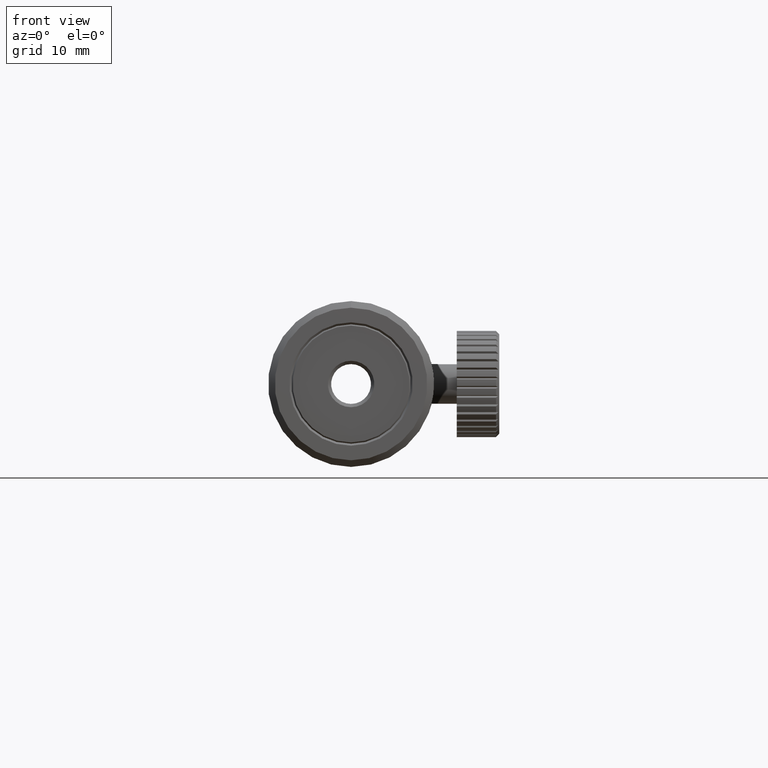
[diagram: clean part render]
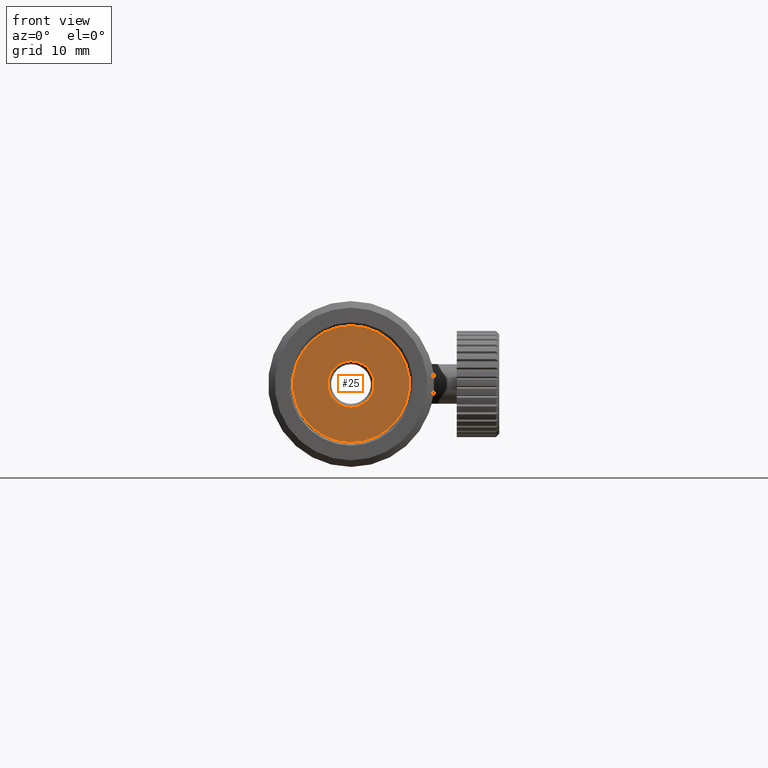
[diagram: same view with one face highlighted and labeled with its STEP entity id]
A machine part, front view. The second image highlights one B-rep face of the part: STEP entity #25.
In plain terms, the highlighted planar face has unit normal (0, 1, 0).
Its self-contained STEP definition (entity closure, byte-faithful):
#25 = ADVANCED_FACE ( 'NONE', ( #4320, #4321 ), #2839, .F. ) ;
#227 = CARTESIAN_POINT ( 'NONE',  ( -6.149801035848841300, -6.612444597380674700, 8.799999999999995400 ) ) ;
#230 = CARTESIAN_POINT ( 'NONE',  ( -6.149801035848841300, -6.612444597380674700, 3.499999999999999600 ) ) ;
#474 = AXIS2_PLACEMENT_3D ( 'NONE', #2837, #2841, #2842 ) ;
#1517 = EDGE_LOOP ( 'NONE', ( #2125 ) ) ;
#1518 = EDGE_LOOP ( 'NONE', ( #2126 ) ) ;
#1927 = EDGE_CURVE ( 'NONE', #3816, #3816, #4699, .T. ) ;
#1930 = EDGE_CURVE ( 'NONE', #3819, #3819, #4702, .T. ) ;
#2125 = ORIENTED_EDGE ( 'NONE', *, *, #1927, .T. ) ;
#2126 = ORIENTED_EDGE ( 'NONE', *, *, #1930, .T. ) ;
#2837 = CARTESIAN_POINT ( 'NONE',  ( -6.149801035848841300, -6.612444597380674700, 0.0000000000000000000 ) ) ;
#2839 = PLANE ( 'NONE',  #474 ) ;
#2841 = DIRECTION ( 'NONE',  ( 0.0000000000000000000, 1.000000000000000000, 0.0000000000000000000 ) ) ;
#2842 = DIRECTION ( 'NONE',  ( 0.0000000000000000000, -0.0000000000000000000, 1.000000000000000000 ) ) ;
#3129 = CARTESIAN_POINT ( 'NONE',  ( -6.149801035848841300, -6.612444597380674700, 0.0000000000000000000 ) ) ;
#3130 = DIRECTION ( 'NONE',  ( -0.0000000000000000000, -1.000000000000000000, -0.0000000000000000000 ) ) ;
#3131 = DIRECTION ( 'NONE',  ( 0.0000000000000000000, 0.0000000000000000000, 1.000000000000000000 ) ) ;
#3140 = CARTESIAN_POINT ( 'NONE',  ( -6.149801035848841300, -6.612444597380674700, 0.0000000000000000000 ) ) ;
#3141 = DIRECTION ( 'NONE',  ( 0.0000000000000000000, 1.000000000000000000, 0.0000000000000000000 ) ) ;
#3142 = DIRECTION ( 'NONE',  ( 0.0000000000000000000, 0.0000000000000000000, 1.000000000000000000 ) ) ;
#3816 = VERTEX_POINT ( 'NONE', #227 ) ;
#3819 = VERTEX_POINT ( 'NONE', #230 ) ;
#4320 = FACE_BOUND ( 'NONE', #1518, .T. ) ;
#4321 = FACE_OUTER_BOUND ( 'NONE', #1517, .T. ) ;
#4491 = AXIS2_PLACEMENT_3D ( 'NONE', #3129, #3130, #3131 ) ;
#4494 = AXIS2_PLACEMENT_3D ( 'NONE', #3140, #3141, #3142 ) ;
#4699 = CIRCLE ( 'NONE', #4491, 8.799999999999995400 ) ;
#4702 = CIRCLE ( 'NONE', #4494, 3.499999999999999600 ) ;